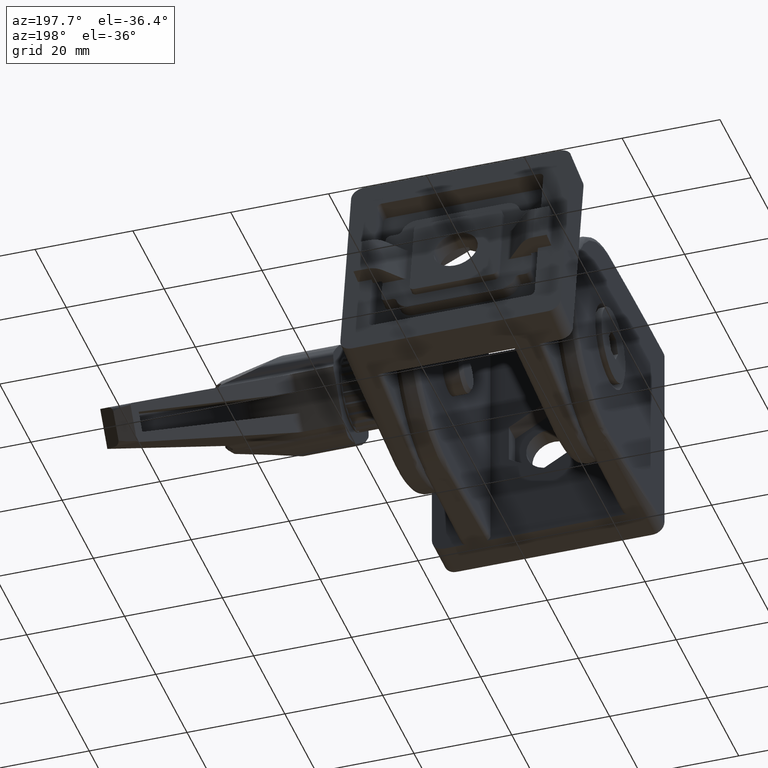
[diagram: clean part render]
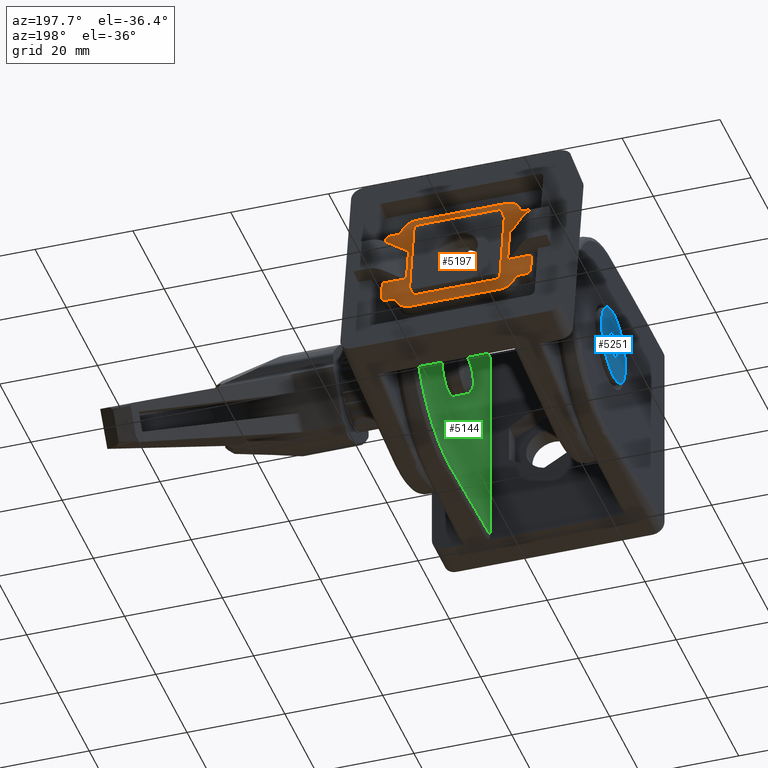
[diagram: same view with three faces highlighted in distinct colors, each labeled with its STEP entity id]
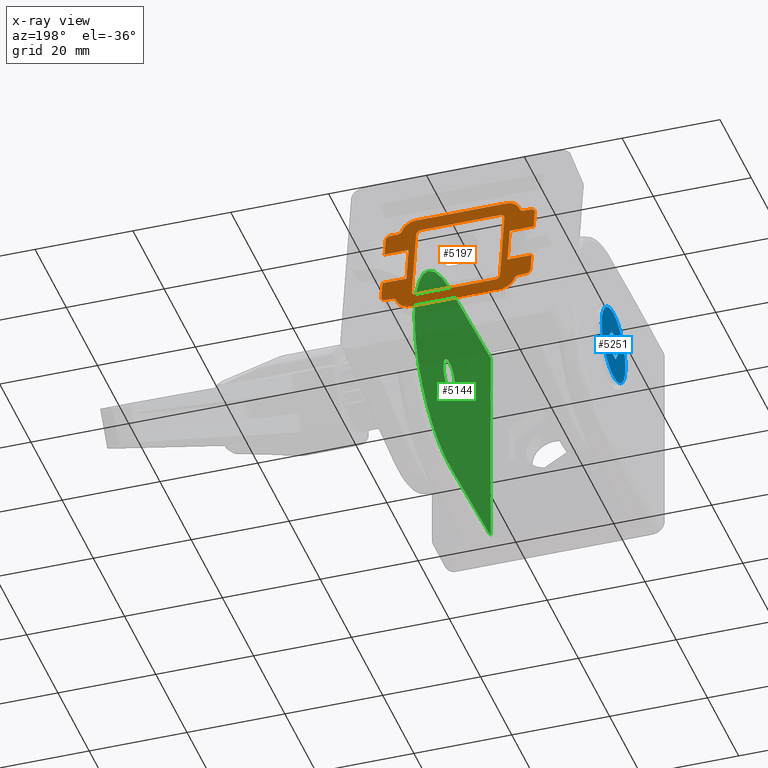
[diagram: x-ray of the same camera — body ghosted, the three highlighted faces saturated]
A machine part, auxiliary view with three faces highlighted in distinct colors.
The next image is the same camera in x-ray (body ghosted, the three faces saturated) — at least one of them is partly hidden behind the body in this view.
Their STEP definitions:

[orange] entity #5197 — the highlighted planar face has unit normal (-0, 0.985, 0.1726).
#171=LINE('',#8756,#602);
#176=LINE('',#8771,#607);
#182=LINE('',#8792,#613);
#183=LINE('',#8798,#614);
#184=LINE('',#8802,#615);
#185=LINE('',#8804,#616);
#186=LINE('',#8806,#617);
#187=LINE('',#8808,#618);
#188=LINE('',#8810,#619);
#189=LINE('',#8814,#620);
#190=LINE('',#8820,#621);
#191=LINE('',#8826,#622);
#192=LINE('',#8829,#623);
#193=LINE('',#8830,#624);
#194=LINE('',#8832,#625);
#195=LINE('',#8835,#626);
#196=LINE('',#8838,#627);
#197=LINE('',#8842,#628);
#198=LINE('',#8846,#629);
#199=LINE('',#8850,#630);
#602=VECTOR('',#6274,4.9142135623731);
#607=VECTOR('',#6285,4.9142135623731);
#613=VECTOR('',#6301,18.2540333075852);
#614=VECTOR('',#6306,1.25);
#615=VECTOR('',#6309,4.);
#616=VECTOR('',#6310,4.91421356237309);
#617=VECTOR('',#6311,8.);
#618=VECTOR('',#6312,4.91421356237309);
#619=VECTOR('',#6313,4.);
#620=VECTOR('',#6316,1.25000000000001);
#621=VECTOR('',#6321,18.2540333075852);
#622=VECTOR('',#6326,1.24999999999998);
#623=VECTOR('',#6329,4.);
#624=VECTOR('',#6330,8.);
#625=VECTOR('',#6331,4.);
#626=VECTOR('',#6334,1.24999999999999);
#627=VECTOR('',#6335,16.);
#628=VECTOR('',#6338,16.);
#629=VECTOR('',#6341,16.);
#630=VECTOR('',#6344,16.);
#975=PLANE('',#5540);
#1132=FACE_BOUND('',#1667,.T.);
#1358=FACE_OUTER_BOUND('',#1666,.T.);
#1666=EDGE_LOOP('',(#3892,#3893,#3894,#3895,#3896,#3897,#3898,#3899,#3900,
#3901,#3902,#3903,#3904,#3905,#3906,#3907,#3908,#3909,#3910,#3911,#3912,
#3913,#3914,#3915,#3916,#3917,#3918,#3919));
#1667=EDGE_LOOP('',(#3920,#3921,#3922,#3923,#3924,#3925,#3926,#3927));
#2024=CIRCLE('',#5541,1.);
#2025=CIRCLE('',#5542,3.);
#2026=CIRCLE('',#5543,3.);
#2027=CIRCLE('',#5544,1.);
#2028=CIRCLE('',#5545,1.);
#2029=CIRCLE('',#5546,1.);
#2030=CIRCLE('',#5547,1.);
#2031=CIRCLE('',#5548,3.);
#2032=CIRCLE('',#5549,3.);
#2033=CIRCLE('',#5550,0.999999999999999);
#2034=CIRCLE('',#5551,1.);
#2035=CIRCLE('',#5552,1.);
#2036=CIRCLE('',#5553,1.);
#2037=CIRCLE('',#5554,1.);
#2038=CIRCLE('',#5555,1.);
#2039=CIRCLE('',#5556,1.);
#2353=VERTEX_POINT('',#8753);
#2354=VERTEX_POINT('',#8755);
#2360=VERTEX_POINT('',#8769);
#2361=VERTEX_POINT('',#8770);
#2368=VERTEX_POINT('',#8786);
#2369=VERTEX_POINT('',#8787);
#2370=VERTEX_POINT('',#8789);
#2371=VERTEX_POINT('',#8791);
#2372=VERTEX_POINT('',#8793);
#2373=VERTEX_POINT('',#8795);
#2374=VERTEX_POINT('',#8797);
#2375=VERTEX_POINT('',#8799);
#2376=VERTEX_POINT('',#8801);
#2377=VERTEX_POINT('',#8803);
#2378=VERTEX_POINT('',#8805);
#2379=VERTEX_POINT('',#8807);
#2380=VERTEX_POINT('',#8809);
#2381=VERTEX_POINT('',#8811);
#2382=VERTEX_POINT('',#8813);
#2383=VERTEX_POINT('',#8815);
#2384=VERTEX_POINT('',#8817);
#2385=VERTEX_POINT('',#8819);
#2386=VERTEX_POINT('',#8821);
#2387=VERTEX_POINT('',#8823);
#2388=VERTEX_POINT('',#8825);
#2389=VERTEX_POINT('',#8827);
#2390=VERTEX_POINT('',#8831);
#2391=VERTEX_POINT('',#8833);
#2392=VERTEX_POINT('',#8836);
#2393=VERTEX_POINT('',#8837);
#2394=VERTEX_POINT('',#8839);
#2395=VERTEX_POINT('',#8841);
#2396=VERTEX_POINT('',#8843);
#2397=VERTEX_POINT('',#8845);
#2398=VERTEX_POINT('',#8847);
#2399=VERTEX_POINT('',#8849);
#2935=EDGE_CURVE('',#2354,#2353,#171,.T.);
#2942=EDGE_CURVE('',#2360,#2361,#176,.T.);
#2950=EDGE_CURVE('',#2368,#2369,#2024,.T.);
#2951=EDGE_CURVE('',#2369,#2370,#2025,.T.);
#2952=EDGE_CURVE('',#2370,#2371,#182,.T.);
#2953=EDGE_CURVE('',#2371,#2372,#2026,.T.);
#2954=EDGE_CURVE('',#2372,#2373,#2027,.T.);
#2955=EDGE_CURVE('',#2373,#2374,#183,.T.);
#2956=EDGE_CURVE('',#2374,#2375,#2028,.T.);
#2957=EDGE_CURVE('',#2375,#2376,#184,.T.);
#2958=EDGE_CURVE('',#2376,#2377,#185,.T.);
#2959=EDGE_CURVE('',#2377,#2378,#186,.T.);
#2960=EDGE_CURVE('',#2379,#2378,#187,.T.);
#2961=EDGE_CURVE('',#2379,#2380,#188,.T.);
#2962=EDGE_CURVE('',#2380,#2381,#2029,.T.);
#2963=EDGE_CURVE('',#2381,#2382,#189,.T.);
#2964=EDGE_CURVE('',#2382,#2383,#2030,.T.);
#2965=EDGE_CURVE('',#2383,#2384,#2031,.T.);
#2966=EDGE_CURVE('',#2384,#2385,#190,.T.);
#2967=EDGE_CURVE('',#2385,#2386,#2032,.T.);
#2968=EDGE_CURVE('',#2386,#2387,#2033,.T.);
#2969=EDGE_CURVE('',#2387,#2388,#191,.T.);
#2970=EDGE_CURVE('',#2388,#2389,#2034,.T.);
#2971=EDGE_CURVE('',#2389,#2361,#192,.T.);
#2972=EDGE_CURVE('',#2360,#2354,#193,.T.);
#2973=EDGE_CURVE('',#2353,#2390,#194,.T.);
#2974=EDGE_CURVE('',#2390,#2391,#2035,.T.);
#2975=EDGE_CURVE('',#2391,#2368,#195,.T.);
#2976=EDGE_CURVE('',#2392,#2393,#196,.T.);
#2977=EDGE_CURVE('',#2392,#2394,#2036,.T.);
#2978=EDGE_CURVE('',#2395,#2394,#197,.T.);
#2979=EDGE_CURVE('',#2395,#2396,#2037,.T.);
#2980=EDGE_CURVE('',#2397,#2396,#198,.T.);
#2981=EDGE_CURVE('',#2397,#2398,#2038,.T.);
#2982=EDGE_CURVE('',#2399,#2398,#199,.T.);
#2983=EDGE_CURVE('',#2399,#2393,#2039,.T.);
#3892=ORIENTED_EDGE('',*,*,#2950,.T.);
#3893=ORIENTED_EDGE('',*,*,#2951,.T.);
#3894=ORIENTED_EDGE('',*,*,#2952,.T.);
#3895=ORIENTED_EDGE('',*,*,#2953,.T.);
#3896=ORIENTED_EDGE('',*,*,#2954,.T.);
#3897=ORIENTED_EDGE('',*,*,#2955,.T.);
#3898=ORIENTED_EDGE('',*,*,#2956,.T.);
#3899=ORIENTED_EDGE('',*,*,#2957,.T.);
#3900=ORIENTED_EDGE('',*,*,#2958,.T.);
#3901=ORIENTED_EDGE('',*,*,#2959,.T.);
#3902=ORIENTED_EDGE('',*,*,#2960,.F.);
#3903=ORIENTED_EDGE('',*,*,#2961,.T.);
#3904=ORIENTED_EDGE('',*,*,#2962,.T.);
#3905=ORIENTED_EDGE('',*,*,#2963,.T.);
#3906=ORIENTED_EDGE('',*,*,#2964,.T.);
#3907=ORIENTED_EDGE('',*,*,#2965,.T.);
#3908=ORIENTED_EDGE('',*,*,#2966,.T.);
#3909=ORIENTED_EDGE('',*,*,#2967,.T.);
#3910=ORIENTED_EDGE('',*,*,#2968,.T.);
#3911=ORIENTED_EDGE('',*,*,#2969,.T.);
#3912=ORIENTED_EDGE('',*,*,#2970,.T.);
#3913=ORIENTED_EDGE('',*,*,#2971,.T.);
#3914=ORIENTED_EDGE('',*,*,#2942,.F.);
#3915=ORIENTED_EDGE('',*,*,#2972,.T.);
#3916=ORIENTED_EDGE('',*,*,#2935,.T.);
#3917=ORIENTED_EDGE('',*,*,#2973,.T.);
#3918=ORIENTED_EDGE('',*,*,#2974,.T.);
#3919=ORIENTED_EDGE('',*,*,#2975,.T.);
#3920=ORIENTED_EDGE('',*,*,#2976,.F.);
#3921=ORIENTED_EDGE('',*,*,#2977,.T.);
#3922=ORIENTED_EDGE('',*,*,#2978,.F.);
#3923=ORIENTED_EDGE('',*,*,#2979,.T.);
#3924=ORIENTED_EDGE('',*,*,#2980,.F.);
#3925=ORIENTED_EDGE('',*,*,#2981,.T.);
#3926=ORIENTED_EDGE('',*,*,#2982,.F.);
#3927=ORIENTED_EDGE('',*,*,#2983,.T.);
#5197=ADVANCED_FACE('',(#1358,#1132),#975,.T.);
#5540=AXIS2_PLACEMENT_3D('',#8785,#6295,#6296);
#5541=AXIS2_PLACEMENT_3D('',#8788,#6297,#6298);
#5542=AXIS2_PLACEMENT_3D('',#8790,#6299,#6300);
#5543=AXIS2_PLACEMENT_3D('',#8794,#6302,#6303);
#5544=AXIS2_PLACEMENT_3D('',#8796,#6304,#6305);
#5545=AXIS2_PLACEMENT_3D('',#8800,#6307,#6308);
#5546=AXIS2_PLACEMENT_3D('',#8812,#6314,#6315);
#5547=AXIS2_PLACEMENT_3D('',#8816,#6317,#6318);
#5548=AXIS2_PLACEMENT_3D('',#8818,#6319,#6320);
#5549=AXIS2_PLACEMENT_3D('',#8822,#6322,#6323);
#5550=AXIS2_PLACEMENT_3D('',#8824,#6324,#6325);
#5551=AXIS2_PLACEMENT_3D('',#8828,#6327,#6328);
#5552=AXIS2_PLACEMENT_3D('',#8834,#6332,#6333);
#5553=AXIS2_PLACEMENT_3D('',#8840,#6336,#6337);
#5554=AXIS2_PLACEMENT_3D('',#8844,#6339,#6340);
#5555=AXIS2_PLACEMENT_3D('',#8848,#6342,#6343);
#5556=AXIS2_PLACEMENT_3D('',#8851,#6345,#6346);
#6274=DIRECTION('',(1.,0.,0.));
#6285=DIRECTION('',(1.,0.,0.));
#6295=DIRECTION('center_axis',(0.,0.,1.));
#6296=DIRECTION('ref_axis',(1.,0.,0.));
#6297=DIRECTION('center_axis',(0.,0.,-1.));
#6298=DIRECTION('ref_axis',(1.,0.,0.));
#6299=DIRECTION('center_axis',(0.,0.,1.));
#6300=DIRECTION('ref_axis',(1.,0.,0.));
#6301=DIRECTION('',(-1.,-1.44560289664734E-16,0.));
#6302=DIRECTION('center_axis',(0.,0.,1.));
#6303=DIRECTION('ref_axis',(1.,0.,0.));
#6304=DIRECTION('center_axis',(0.,0.,-1.));
#6305=DIRECTION('ref_axis',(1.,0.,0.));
#6306=DIRECTION('',(-1.,-2.77555756156289E-16,0.));
#6307=DIRECTION('center_axis',(0.,0.,1.));
#6308=DIRECTION('ref_axis',(1.,0.,0.));
#6309=DIRECTION('',(0.,-1.,0.));
#6310=DIRECTION('',(1.,0.,0.));
#6311=DIRECTION('',(0.,-1.,0.));
#6312=DIRECTION('',(1.,0.,0.));
#6313=DIRECTION('',(0.,-1.,0.));
#6314=DIRECTION('center_axis',(0.,0.,1.));
#6315=DIRECTION('ref_axis',(1.,0.,0.));
#6316=DIRECTION('',(1.,0.,0.));
#6317=DIRECTION('center_axis',(0.,0.,-1.));
#6318=DIRECTION('ref_axis',(1.,0.,0.));
#6319=DIRECTION('center_axis',(0.,0.,1.));
#6320=DIRECTION('ref_axis',(1.,0.,0.));
#6321=DIRECTION('',(1.,2.16840434497101E-16,0.));
#6322=DIRECTION('center_axis',(0.,0.,1.));
#6323=DIRECTION('ref_axis',(1.,0.,0.));
#6324=DIRECTION('center_axis',(0.,0.,-1.));
#6325=DIRECTION('ref_axis',(1.,0.,0.));
#6326=DIRECTION('',(1.,0.,0.));
#6327=DIRECTION('center_axis',(0.,0.,1.));
#6328=DIRECTION('ref_axis',(1.,0.,0.));
#6329=DIRECTION('',(0.,1.,0.));
#6330=DIRECTION('',(0.,1.,0.));
#6331=DIRECTION('',(0.,1.,0.));
#6332=DIRECTION('center_axis',(0.,0.,1.));
#6333=DIRECTION('ref_axis',(1.,0.,0.));
#6334=DIRECTION('',(-1.,2.77555756156289E-16,0.));
#6335=DIRECTION('',(0.,-1.,0.));
#6336=DIRECTION('center_axis',(0.,0.,-1.));
#6337=DIRECTION('ref_axis',(1.,0.,0.));
#6338=DIRECTION('',(-1.,0.,0.));
#6339=DIRECTION('center_axis',(0.,0.,-1.));
#6340=DIRECTION('ref_axis',(1.,0.,0.));
#6341=DIRECTION('',(0.,1.,0.));
#6342=DIRECTION('center_axis',(0.,0.,-1.));
#6343=DIRECTION('ref_axis',(1.,0.,0.));
#6344=DIRECTION('',(1.,0.,0.));
#6345=DIRECTION('center_axis',(0.,0.,-1.));
#6346=DIRECTION('ref_axis',(1.,0.,0.));
#8753=CARTESIAN_POINT('',(15.25,4.,2.5));
#8755=CARTESIAN_POINT('',(10.3357864376269,4.,2.5));
#8756=CARTESIAN_POINT('',(12.,4.,2.5));
#8769=CARTESIAN_POINT('',(10.3357864376269,-4.,2.5));
#8770=CARTESIAN_POINT('',(15.25,-4.,2.5));
#8771=CARTESIAN_POINT('',(12.,-4.,2.5));
#8785=CARTESIAN_POINT('Origin',(12.,-12.,2.5));
#8786=CARTESIAN_POINT('',(13.,9.,2.5));
#8787=CARTESIAN_POINT('',(12.0317541634482,9.75,2.5));
#8788=CARTESIAN_POINT('Origin',(13.,10.,2.5));
#8789=CARTESIAN_POINT('',(9.12701665379259,12.,2.5));
#8790=CARTESIAN_POINT('Origin',(9.12701665379259,9.00000000000001,2.5));
#8791=CARTESIAN_POINT('',(-9.12701665379258,12.,2.5));
#8792=CARTESIAN_POINT('',(-12.,12.,2.5));
#8793=CARTESIAN_POINT('',(-12.0317541634481,9.75,2.5));
#8794=CARTESIAN_POINT('Origin',(-9.12701665379258,9.,2.5));
#8795=CARTESIAN_POINT('',(-13.,9.,2.5));
#8796=CARTESIAN_POINT('Origin',(-13.,10.,2.5));
#8797=CARTESIAN_POINT('',(-14.25,9.,2.5));
#8798=CARTESIAN_POINT('',(-15.25,9.,2.5));
#8799=CARTESIAN_POINT('',(-15.25,8.,2.5));
#8800=CARTESIAN_POINT('Origin',(-14.25,8.,2.5));
#8801=CARTESIAN_POINT('',(-15.25,4.,2.5));
#8802=CARTESIAN_POINT('',(-15.25,9.,2.5));
#8803=CARTESIAN_POINT('',(-10.3357864376269,4.,2.5));
#8804=CARTESIAN_POINT('',(12.,4.,2.5));
#8805=CARTESIAN_POINT('',(-10.3357864376269,-4.,2.5));
#8806=CARTESIAN_POINT('',(-10.3357864376269,-4.,2.5));
#8807=CARTESIAN_POINT('',(-15.25,-4.,2.5));
#8808=CARTESIAN_POINT('',(12.,-4.,2.5));
#8809=CARTESIAN_POINT('',(-15.25,-8.,2.5));
#8810=CARTESIAN_POINT('',(-15.25,9.,2.5));
#8811=CARTESIAN_POINT('',(-14.25,-9.,2.5));
#8812=CARTESIAN_POINT('Origin',(-14.25,-8.,2.5));
#8813=CARTESIAN_POINT('',(-13.,-9.,2.5));
#8814=CARTESIAN_POINT('',(-15.25,-9.,2.5));
#8815=CARTESIAN_POINT('',(-12.0317541634481,-9.75,2.5));
#8816=CARTESIAN_POINT('Origin',(-13.,-10.,2.5));
#8817=CARTESIAN_POINT('',(-9.12701665379257,-12.,2.5));
#8818=CARTESIAN_POINT('Origin',(-9.12701665379257,-9.,2.5));
#8819=CARTESIAN_POINT('',(9.1270166537926,-12.,2.5));
#8820=CARTESIAN_POINT('',(-12.,-12.,2.5));
#8821=CARTESIAN_POINT('',(12.0317541634482,-9.75,2.5));
#8822=CARTESIAN_POINT('Origin',(9.1270166537926,-9.,2.5));
#8823=CARTESIAN_POINT('',(13.,-9.,2.5));
#8824=CARTESIAN_POINT('Origin',(13.,-10.,2.5));
#8825=CARTESIAN_POINT('',(14.25,-9.,2.5));
#8826=CARTESIAN_POINT('',(9.,-9.,2.5));
#8827=CARTESIAN_POINT('',(15.25,-8.,2.5));
#8828=CARTESIAN_POINT('Origin',(14.25,-8.,2.5));
#8829=CARTESIAN_POINT('',(15.25,9.,2.5));
#8830=CARTESIAN_POINT('',(10.3357864376269,-12.,2.5));
#8831=CARTESIAN_POINT('',(15.25,8.,2.5));
#8832=CARTESIAN_POINT('',(15.25,9.,2.5));
#8833=CARTESIAN_POINT('',(14.25,9.,2.5));
#8834=CARTESIAN_POINT('Origin',(14.25,8.,2.5));
#8835=CARTESIAN_POINT('',(9.,9.,2.5));
#8836=CARTESIAN_POINT('',(-9.,8.,2.5));
#8837=CARTESIAN_POINT('',(-9.,-8.,2.5));
#8838=CARTESIAN_POINT('',(-9.,9.,2.5));
#8839=CARTESIAN_POINT('',(-8.,9.,2.5));
#8840=CARTESIAN_POINT('Origin',(-8.,8.,2.5));
#8841=CARTESIAN_POINT('',(8.,9.,2.5));
#8842=CARTESIAN_POINT('',(-9.,9.,2.5));
#8843=CARTESIAN_POINT('',(9.,8.,2.5));
#8844=CARTESIAN_POINT('Origin',(8.,8.,2.5));
#8845=CARTESIAN_POINT('',(9.,-8.,2.5));
#8846=CARTESIAN_POINT('',(9.,9.,2.5));
#8847=CARTESIAN_POINT('',(8.,-9.,2.5));
#8848=CARTESIAN_POINT('Origin',(8.,-8.,2.5));
#8849=CARTESIAN_POINT('',(-8.,-9.,2.5));
#8850=CARTESIAN_POINT('',(-9.,-9.,2.5));
#8851=CARTESIAN_POINT('Origin',(-8.,-8.,2.5));

[blue] entity #5251 — the highlighted planar face has unit normal (-1, -0, 0).
#263=LINE('',#9036,#694);
#266=LINE('',#9045,#697);
#268=LINE('',#9053,#699);
#270=LINE('',#9061,#701);
#271=LINE('',#9068,#702);
#273=LINE('',#9074,#704);
#694=VECTOR('',#6552,2.88675134594813);
#697=VECTOR('',#6557,2.88675134594813);
#699=VECTOR('',#6561,2.88675134594813);
#701=VECTOR('',#6565,2.88675134594813);
#702=VECTOR('',#6568,2.88675134594813);
#704=VECTOR('',#6572,2.88675134594813);
#1006=PLANE('',#5634);
#1136=FACE_BOUND('',#1725,.T.);
#1412=FACE_OUTER_BOUND('',#1724,.T.);
#1724=EDGE_LOOP('',(#4175));
#1725=EDGE_LOOP('',(#4176,#4177,#4178,#4179,#4180,#4181));
#2063=CIRCLE('',#5635,7.62000000000001);
#2445=VERTEX_POINT('',#9033);
#2446=VERTEX_POINT('',#9035);
#2448=VERTEX_POINT('',#9043);
#2450=VERTEX_POINT('',#9051);
#2452=VERTEX_POINT('',#9059);
#2454=VERTEX_POINT('',#9067);
#2455=VERTEX_POINT('',#9077);
#3071=EDGE_CURVE('',#2446,#2445,#263,.T.);
#3075=EDGE_CURVE('',#2445,#2448,#266,.T.);
#3078=EDGE_CURVE('',#2448,#2450,#268,.T.);
#3081=EDGE_CURVE('',#2450,#2452,#270,.T.);
#3083=EDGE_CURVE('',#2454,#2446,#271,.T.);
#3086=EDGE_CURVE('',#2452,#2454,#273,.T.);
#3087=EDGE_CURVE('',#2455,#2455,#2063,.T.);
#4175=ORIENTED_EDGE('',*,*,#3087,.F.);
#4176=ORIENTED_EDGE('',*,*,#3081,.T.);
#4177=ORIENTED_EDGE('',*,*,#3086,.T.);
#4178=ORIENTED_EDGE('',*,*,#3083,.T.);
#4179=ORIENTED_EDGE('',*,*,#3071,.T.);
#4180=ORIENTED_EDGE('',*,*,#3075,.T.);
#4181=ORIENTED_EDGE('',*,*,#3078,.T.);
#5251=ADVANCED_FACE('',(#1412,#1136),#1006,.T.);
#5634=AXIS2_PLACEMENT_3D('',#9076,#6575,#6576);
#5635=AXIS2_PLACEMENT_3D('',#9078,#6577,#6578);
#6552=DIRECTION('',(4.73988157106606E-51,-1.92296268638356E-16,-1.));
#6557=DIRECTION('',(3.69565084033577E-32,0.866025403784439,-0.5));
#6561=DIRECTION('',(3.69565084033577E-32,0.866025403784439,0.5));
#6565=DIRECTION('',(1.64072467340933E-47,5.7688880591507E-16,1.));
#6568=DIRECTION('',(-3.69565084033577E-32,-0.866025403784439,-0.5));
#6572=DIRECTION('',(-3.69565084033577E-32,-0.866025403784438,0.500000000000001));
#6575=DIRECTION('center_axis',(-1.,4.26737001499744E-32,0.));
#6576=DIRECTION('ref_axis',(0.,0.,1.));
#6577=DIRECTION('center_axis',(1.,-4.26737001499744E-32,0.));
#6578=DIRECTION('ref_axis',(0.,1.,0.));
#9033=CARTESIAN_POINT('',(-3.30865228618602E-31,-2.5,-1.44337567297406));
#9035=CARTESIAN_POINT('',(-3.30865228618602E-31,-2.5,1.44337567297406));
#9036=CARTESIAN_POINT('',(-3.30865228618602E-31,-2.5,-0.652630422537716));
#9043=CARTESIAN_POINT('',(-2.24180978243666E-31,-3.53513404015337E-16,-2.88675134594813));
#9045=CARTESIAN_POINT('',(-2.49917899754861E-31,-0.603109676937896,-2.53854581161717));
#9051=CARTESIAN_POINT('',(-1.1749672786873E-31,2.5,-1.44337567297407));
#9053=CARTESIAN_POINT('',(-1.40681528480993E-31,1.95669579786187,-1.75705250033037));
#9059=CARTESIAN_POINT('',(-1.1749672786873E-31,2.5,1.44337567297406));
#9061=CARTESIAN_POINT('',(-1.1749672786873E-31,2.5,0.790745250436345));
#9067=CARTESIAN_POINT('',(-2.24180978243666E-31,0.,2.88675134594813));
#9068=CARTESIAN_POINT('',(-3.00707904043397E-31,-1.79330420213813,1.85138668210479));
#9074=CARTESIAN_POINT('',(-1.96575774567393E-31,0.646890323062105,2.51326904379206));
#9076=CARTESIAN_POINT('Origin',(0.,5.25337567297407,0.));
#9077=CARTESIAN_POINT('',(0.,7.62000000000001,0.));
#9078=CARTESIAN_POINT('Origin',(0.,2.16213414093204E-31,0.));

[green] entity #5144 — the highlighted planar face has unit normal (0.9997, -0.0262, 0).
#116=LINE('',#7961,#547);
#117=LINE('',#7963,#548);
#118=LINE('',#7964,#549);
#547=VECTOR('',#6087,23.5342415451046);
#548=VECTOR('',#6088,43.);
#549=VECTOR('',#6089,23.5342415451046);
#952=PLANE('',#5468);
#1125=FACE_BOUND('',#1607,.T.);
#1159=ELLIPSE('',#5434,3.40116549446894,3.4);
#1305=FACE_OUTER_BOUND('',#1606,.T.);
#1606=EDGE_LOOP('',(#3641,#3642,#3643,#3644,#3645));
#1607=EDGE_LOOP('',(#3646));
#2208=B_SPLINE_CURVE_WITH_KNOTS('',3,(#7559,#7560,#7561,#7562,#7563,#7564,
#7565,#7566,#7567,#7568,#7569,#7570,#7571,#7572,#7573,#7574,#7575,#7576,
#7577,#7578,#7579,#7580,#7581,#7582,#7583),.UNSPECIFIED.,.F.,.F.,(4,3,3,
3,3,3,3,3,4),(0.,0.196349540849362,0.392699081698723,0.589048622548085,
0.785398163397448,0.98174770424681,1.17809724509617,1.37444678594554,1.5707963267949),
 .UNSPECIFIED.);
#2217=B_SPLINE_CURVE_WITH_KNOTS('',3,(#7935,#7936,#7937,#7938,#7939,#7940,
#7941,#7942,#7943,#7944,#7945,#7946,#7947,#7948,#7949,#7950,#7951,#7952,
#7953,#7954,#7955,#7956,#7957,#7958,#7959),.UNSPECIFIED.,.F.,.F.,(4,3,3,
3,3,3,3,3,4),(4.71238898038469,4.90873852123405,5.10508806208341,5.30143760293278,
5.49778714378214,5.6941366846315,5.89048622548086,6.08683576633022,6.28318530717959),
 .UNSPECIFIED.);
#2247=VERTEX_POINT('',#7557);
#2248=VERTEX_POINT('',#7558);
#2251=VERTEX_POINT('',#7607);
#2305=VERTEX_POINT('',#7934);
#2306=VERTEX_POINT('',#7960);
#2307=VERTEX_POINT('',#7962);
#2773=EDGE_CURVE('',#2247,#2248,#2208,.T.);
#2777=EDGE_CURVE('',#2251,#2251,#1159,.T.);
#2844=EDGE_CURVE('',#2305,#2247,#2217,.T.);
#2845=EDGE_CURVE('',#2248,#2306,#116,.T.);
#2846=EDGE_CURVE('',#2307,#2306,#117,.T.);
#2847=EDGE_CURVE('',#2307,#2305,#118,.T.);
#3641=ORIENTED_EDGE('',*,*,#2844,.T.);
#3642=ORIENTED_EDGE('',*,*,#2773,.T.);
#3643=ORIENTED_EDGE('',*,*,#2845,.T.);
#3644=ORIENTED_EDGE('',*,*,#2846,.F.);
#3645=ORIENTED_EDGE('',*,*,#2847,.T.);
#3646=ORIENTED_EDGE('',*,*,#2777,.T.);
#5144=ADVANCED_FACE('',(#1305,#1125),#952,.F.);
#5434=AXIS2_PLACEMENT_3D('',#7608,#5985,#5986);
#5468=AXIS2_PLACEMENT_3D('',#7933,#6085,#6086);
#5985=DIRECTION('center_axis',(0.999657324975557,-0.0261769483078662,0.));
#5986=DIRECTION('ref_axis',(0.0261769483078662,0.999657324975557,-1.36731275826319E-12));
#6085=DIRECTION('center_axis',(0.999657324975557,-0.0261769483078657,0.));
#6086=DIRECTION('ref_axis',(0.0261769483078655,0.999657324975558,0.));
#6087=DIRECTION('',(-0.0261769483078657,-0.999657324975557,0.));
#6088=DIRECTION('',(0.,0.,-1.));
#6089=DIRECTION('',(0.0261769483078657,0.999657324975557,0.));
#7557=CARTESIAN_POINT('',(11.6790519381284,53.0261769483079,22.5));
#7558=CARTESIAN_POINT('',(11.116054624391,31.5261769483079,1.));
#7559=CARTESIAN_POINT('Ctrl Pts',(11.6790519381284,53.0261769483079,22.5));
#7560=CARTESIAN_POINT('Ctrl Pts',(11.6790519381284,53.0261769483079,21.0928123282821));
#7561=CARTESIAN_POINT('Ctrl Pts',(11.6754228079655,52.8875860587995,19.685691375756));
#7562=CARTESIAN_POINT('Ctrl Pts',(11.6682341026112,52.6130604769773,18.3055580766532));
#7563=CARTESIAN_POINT('Ctrl Pts',(11.6610453972569,52.3385348951551,16.9254247775504));
#7564=CARTESIAN_POINT('Ctrl Pts',(11.6502974722052,51.928088196792,15.5723633447441));
#7565=CARTESIAN_POINT('Ctrl Pts',(11.6361963194118,51.3895868973005,14.2723062041505));
#7566=CARTESIAN_POINT('Ctrl Pts',(11.6220951666184,50.851085597809,12.972249063557));
#7567=CARTESIAN_POINT('Ctrl Pts',(11.6046414834104,50.1845563270361,11.7252605053319));
#7568=CARTESIAN_POINT('Ctrl Pts',(11.5841697825716,49.4027736128126,10.5552399900785));
#7569=CARTESIAN_POINT('Ctrl Pts',(11.5636980817328,48.620990898589,9.38521947482514));
#7570=CARTESIAN_POINT('Ctrl Pts',(11.5402093756259,47.7239934014839,8.29222486215563));
#7571=CARTESIAN_POINT('Ctrl Pts',(11.5141538427245,46.7289727438186,7.29720420448919));
#7572=CARTESIAN_POINT('Ctrl Pts',(11.4880983098232,45.7339520861533,6.30218354682274));
#7573=CARTESIAN_POINT('Ctrl Pts',(11.4594772386203,44.6409574734822,5.40518604971262));
#7574=CARTESIAN_POINT('Ctrl Pts',(11.4288391731735,43.4709369582293,4.62340333549527));
#7575=CARTESIAN_POINT('Ctrl Pts',(11.3982011077268,42.3009164429765,3.84162062127793));
#7576=CARTESIAN_POINT('Ctrl Pts',(11.3655475631434,41.0539278847518,3.1750913504994));
#7577=CARTESIAN_POINT('Ctrl Pts',(11.3315043688244,39.7538707441573,2.63659005100732));
#7578=CARTESIAN_POINT('Ctrl Pts',(11.2974611745053,38.4538136035628,2.09808875151525));
#7579=CARTESIAN_POINT('Ctrl Pts',(11.2620300139475,37.1007521707554,1.68764205315414));
#7580=CARTESIAN_POINT('Ctrl Pts',(11.2258899516223,35.7206188716546,1.41311647133054));
#7581=CARTESIAN_POINT('Ctrl Pts',(11.189749889297,34.3404855725538,1.13859088950695));
#7582=CARTESIAN_POINT('Ctrl Pts',(11.1529031303957,32.9333646200241,1.00000000000244));
#7583=CARTESIAN_POINT('Ctrl Pts',(11.116054624391,31.5261769483079,1.));
#7607=CARTESIAN_POINT('',(11.1415550784449,32.5,19.1));
#7608=CARTESIAN_POINT('Origin',(11.1415550784449,32.5,22.5));
#7933=CARTESIAN_POINT('Origin',(11.7045523921823,54.,45.));
#7934=CARTESIAN_POINT('',(11.116054624391,31.5261769483079,44.));
#7935=CARTESIAN_POINT('Ctrl Pts',(11.116054624391,31.5261769483079,44.));
#7936=CARTESIAN_POINT('Ctrl Pts',(11.1529031303958,32.9333646200264,43.9999999999902));
#7937=CARTESIAN_POINT('Ctrl Pts',(11.1897498892969,34.3404855725507,43.8614091104917));
#7938=CARTESIAN_POINT('Ctrl Pts',(11.2258899516223,35.7206188716547,43.5868835286695));
#7939=CARTESIAN_POINT('Ctrl Pts',(11.2620300139476,37.1007521707586,43.3123579468472));
#7940=CARTESIAN_POINT('Ctrl Pts',(11.2974611745053,38.4538136035628,42.9019112484896));
#7941=CARTESIAN_POINT('Ctrl Pts',(11.3315043688244,39.7538707441573,42.3634099489927));
#7942=CARTESIAN_POINT('Ctrl Pts',(11.3655475631434,41.0539278847517,41.8249086494957));
#7943=CARTESIAN_POINT('Ctrl Pts',(11.3982011077267,42.3009164429744,41.1583793787251));
#7944=CARTESIAN_POINT('Ctrl Pts',(11.4288391731735,43.4709369582293,40.3765966645047));
#7945=CARTESIAN_POINT('Ctrl Pts',(11.4594772386203,44.6409574734842,39.5948139502844));
#7946=CARTESIAN_POINT('Ctrl Pts',(11.4880983098232,45.7339520861536,38.6978164531759));
#7947=CARTESIAN_POINT('Ctrl Pts',(11.5141538427245,46.7289727438186,37.7027957955108));
#7948=CARTESIAN_POINT('Ctrl Pts',(11.5402093756259,47.7239934014837,36.7077751378457));
#7949=CARTESIAN_POINT('Ctrl Pts',(11.5636980817329,48.6209908985921,35.6147805251715));
#7950=CARTESIAN_POINT('Ctrl Pts',(11.5841697825716,49.4027736128126,34.4447600099215));
#7951=CARTESIAN_POINT('Ctrl Pts',(11.6046414834103,50.1845563270331,33.2747394946714));
#7952=CARTESIAN_POINT('Ctrl Pts',(11.6220951666185,50.851085597812,32.0277509364415));
#7953=CARTESIAN_POINT('Ctrl Pts',(11.6361963194118,51.3895868973005,30.7276937958494));
#7954=CARTESIAN_POINT('Ctrl Pts',(11.6502974722051,51.9280881967891,29.4276366552573));
#7955=CARTESIAN_POINT('Ctrl Pts',(11.6610453972568,52.3385348951519,28.0745752224487));
#7956=CARTESIAN_POINT('Ctrl Pts',(11.6682341026112,52.6130604769773,26.6944419233468));
#7957=CARTESIAN_POINT('Ctrl Pts',(11.6754228079656,52.8875860588028,25.3143086242448));
#7958=CARTESIAN_POINT('Ctrl Pts',(11.6790519381284,53.0261769483079,23.9071876717171));
#7959=CARTESIAN_POINT('Ctrl Pts',(11.6790519381284,53.0261769483079,22.5));
#7960=CARTESIAN_POINT('',(10.5,8.,1.00000000000001));
#7961=CARTESIAN_POINT('',(11.7045523921823,54.,1.));
#7962=CARTESIAN_POINT('',(10.5,8.,44.));
#7963=CARTESIAN_POINT('',(10.5,8.,45.));
#7964=CARTESIAN_POINT('',(11.1153691568757,31.5,44.));